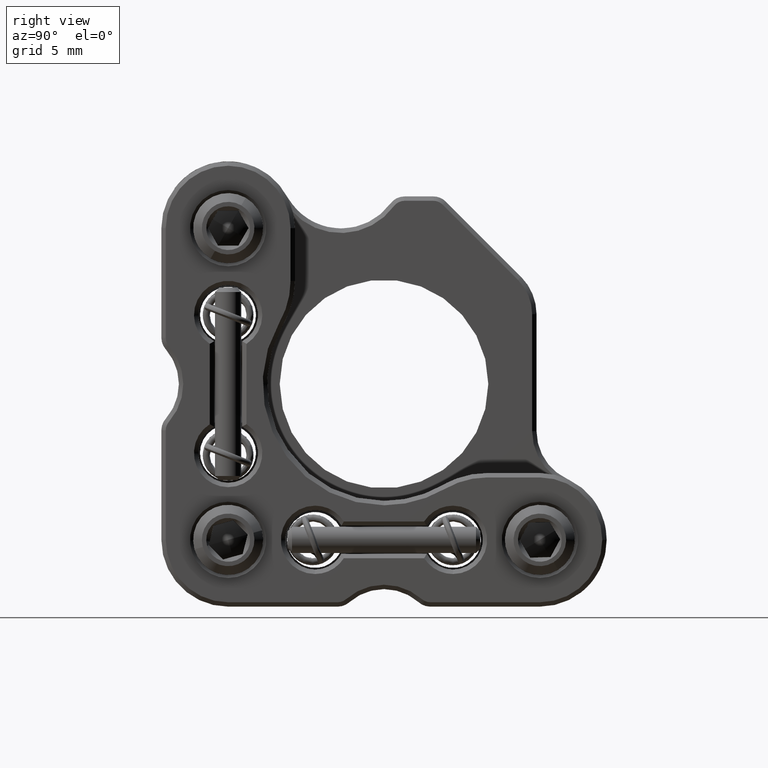
[diagram: clean part render]
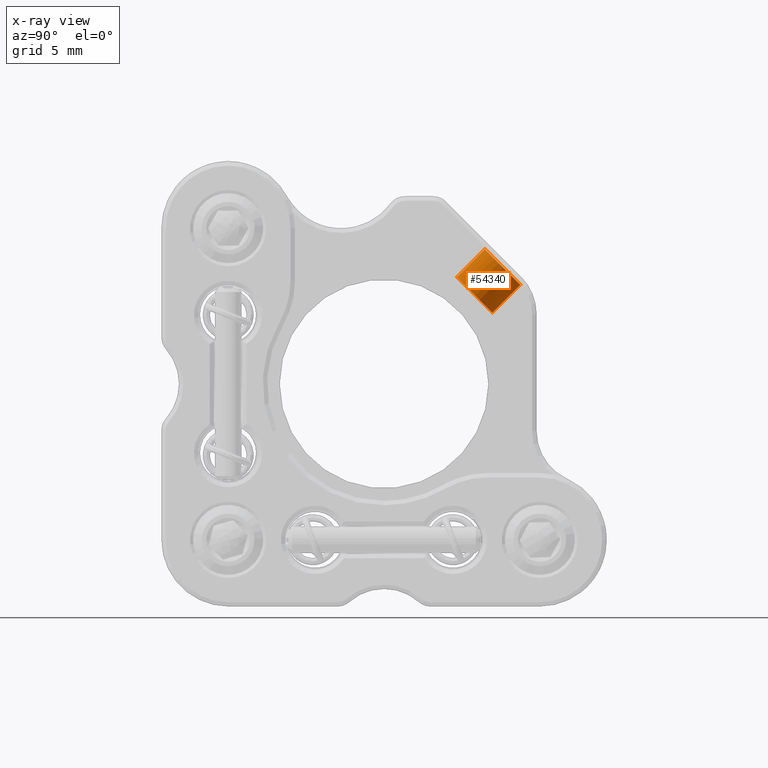
[diagram: x-ray — body ghosted, one internal face saturated and labeled with its STEP entity id]
A machine part, right view, then the same camera in x-ray: the body is ghosted and one INTERNAL B-rep face — a face not visible from any outside direction — is saturated and labeled: STEP entity #54340.
In plain terms, the highlighted cylindrical surface (edge-blend (fillet) strip) has radius 1.5 mm, axis along (0, -0.7071, -0.7071).
Its self-contained STEP definition (entity closure, byte-faithful):
#3299 = CARTESIAN_POINT ( 'NONE',  ( -10.17499999999998650, 5.126524163601912321, 5.126524163602184103 ) ) ;
#4969 = CARTESIAN_POINT ( 'NONE',  ( -10.17499999999998650, 6.717514421271644665, 6.717514421271916447 ) ) ;
#8451 = CARTESIAN_POINT ( 'NONE',  ( -10.80462584105664092, 7.856988187373448618, 5.931594045763385559 ) ) ;
#9709 = DIRECTION ( 'NONE',  ( 4.813857645835639687E-17, -0.7071067811865476838, -0.7071067811865474617 ) ) ;
#11959 = DIRECTION ( 'NONE',  ( 0.4197505607044365039, -0.6417980472034449102, 0.6417980472034454653 ) ) ;
#15460 = CARTESIAN_POINT ( 'NONE',  ( -9.545374158943332077, 5.931594045763113776, 7.856988187373721289 ) ) ;
#15968 = CARTESIAN_POINT ( 'NONE',  ( -10.17499999999998650, 6.894291116568281197, 6.894291116568553868 ) ) ;
#16292 = DIRECTION ( 'NONE',  ( 4.813857645835639687E-17, -0.7071067811865476838, -0.7071067811865474617 ) ) ;
#19463 = CARTESIAN_POINT ( 'NONE',  ( -10.80462584105664092, 7.680211492076812085, 5.754817350466748138 ) ) ;
#21173 = VECTOR ( 'NONE', #9709, 1000.000000000000000 ) ;
#21928 = VERTEX_POINT ( 'NONE', #69170 ) ;
#25631 = DIRECTION ( 'NONE',  ( 0.4197505607044365039, -0.6417980472034449102, 0.6417980472034454653 ) ) ;
#26086 = CIRCLE ( 'NONE', #70827, 1.500000000000000222 ) ;
#26263 = DIRECTION ( 'NONE',  ( -4.813857645835639687E-17, 0.7071067811865476838, 0.7071067811865474617 ) ) ;
#27495 = ORIENTED_EDGE ( 'NONE', *, *, #77932, .F. ) ;
#29977 = FACE_OUTER_BOUND ( 'NONE', #71202, .T. ) ;
#31102 = CYLINDRICAL_SURFACE ( 'NONE', #52316, 1.500000000000000222 ) ;
#41753 = EDGE_CURVE ( 'NONE', #61161, #21928, #67102, .T. ) ;
#44189 = EDGE_CURVE ( 'NONE', #91464, #61161, #75920, .T. ) ;
#48104 = DIRECTION ( 'NONE',  ( 4.813857645835639687E-17, -0.7071067811865476838, -0.7071067811865474617 ) ) ;
#52316 = AXIS2_PLACEMENT_3D ( 'NONE', #15968, #16292, #67437 ) ;
#54340 = ADVANCED_FACE ( 'NONE', ( #29977 ), #31102, .T. ) ;
#56831 = VECTOR ( 'NONE', #88638, 1000.000000000000000 ) ;
#60336 = CARTESIAN_POINT ( 'NONE',  ( -10.80462584105664092, 6.089221234407080630, 4.163827092797015794 ) ) ;
#60543 = AXIS2_PLACEMENT_3D ( 'NONE', #4969, #48104, #11959 ) ;
#61161 = VERTEX_POINT ( 'NONE', #85984 ) ;
#66135 = VERTEX_POINT ( 'NONE', #60336 ) ;
#67102 = LINE ( 'NONE', #15460, #56831 ) ;
#67437 = DIRECTION ( 'NONE',  ( -0.4197505607044365039, 0.6417980472034449102, -0.6417980472034454653 ) ) ;
#69170 = CARTESIAN_POINT ( 'NONE',  ( -9.545374158943332077, 4.163827092796744012, 6.089221234407351524 ) ) ;
#70827 = AXIS2_PLACEMENT_3D ( 'NONE', #3299, #26263, #25631 ) ;
#71202 = EDGE_LOOP ( 'NONE', ( #74847, #83160, #71464, #27495 ) ) ;
#71464 = ORIENTED_EDGE ( 'NONE', *, *, #87422, .T. ) ;
#73832 = LINE ( 'NONE', #8451, #21173 ) ;
#74847 = ORIENTED_EDGE ( 'NONE', *, *, #44189, .T. ) ;
#75920 = CIRCLE ( 'NONE', #60543, 1.500000000000000222 ) ;
#77932 = EDGE_CURVE ( 'NONE', #91464, #66135, #73832, .T. ) ;
#83160 = ORIENTED_EDGE ( 'NONE', *, *, #41753, .T. ) ;
#85984 = CARTESIAN_POINT ( 'NONE',  ( -9.545374158943332077, 5.754817350466476356, 7.680211492077083868 ) ) ;
#87422 = EDGE_CURVE ( 'NONE', #21928, #66135, #26086, .T. ) ;
#88638 = DIRECTION ( 'NONE',  ( 4.813857645835639687E-17, -0.7071067811865476838, -0.7071067811865474617 ) ) ;
#91464 = VERTEX_POINT ( 'NONE', #19463 ) ;